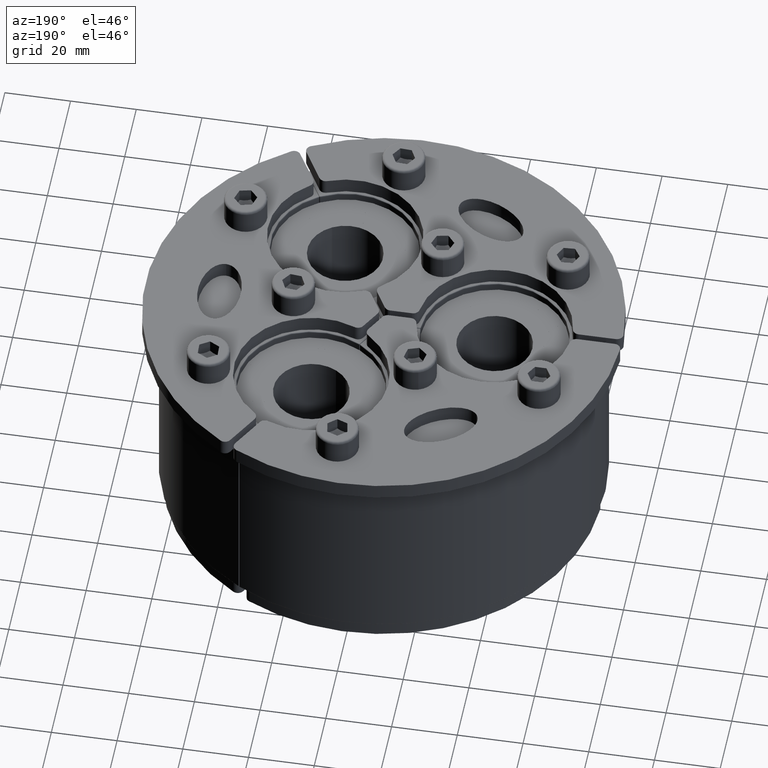
[diagram: clean part render]
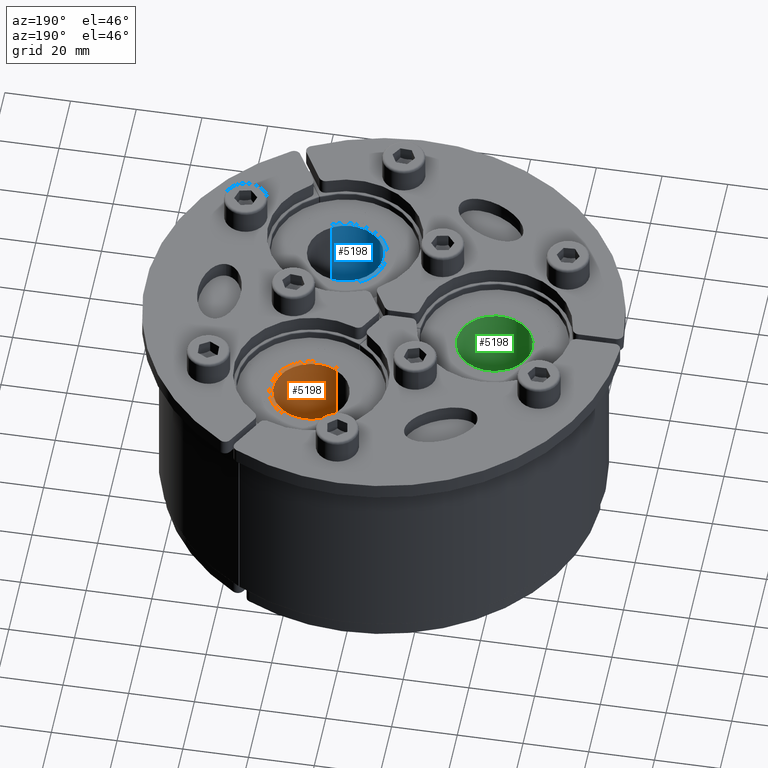
[diagram: same view with three faces highlighted in distinct colors, each labeled with its STEP entity id]
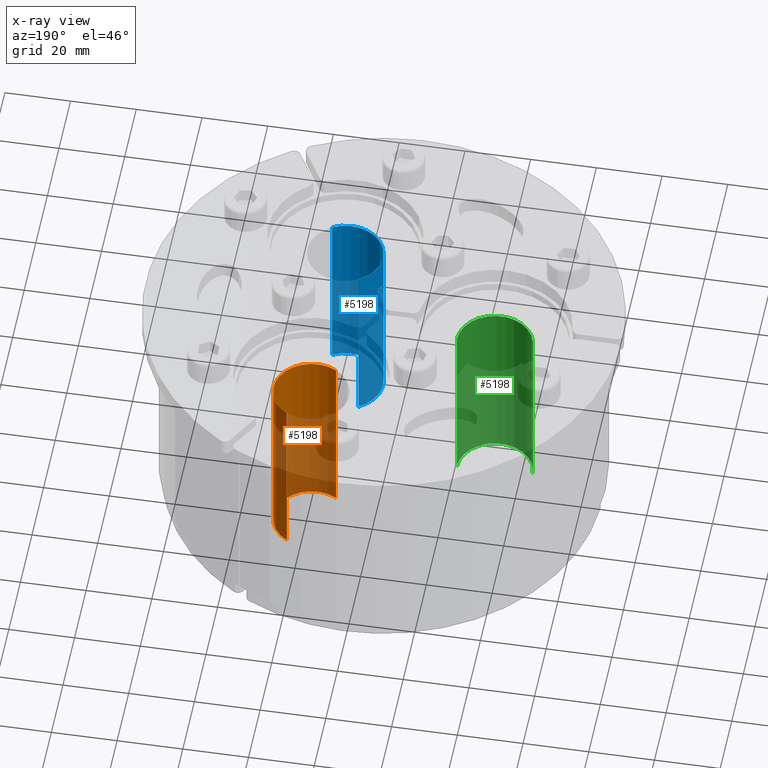
[diagram: x-ray of the same camera — body ghosted, the three highlighted faces saturated]
A machine part, auxiliary view with three faces highlighted in distinct colors.
The next image is the same camera in x-ray (body ghosted, the three faces saturated) — at least one of them is partly hidden behind the body in this view.
Their STEP definitions:

[orange] entity #5198 — the highlighted cylindrical surface (partial cylindrical patch) has radius 11.5 mm, axis along (0, 0, 1).
#5133=CARTESIAN_POINT('',(11.499999999999996,0.0,0.0));
#5134=VERTEX_POINT('',#5133);
#5149=CARTESIAN_POINT('',(11.499999999999995,0.0,55.0));
#5150=VERTEX_POINT('',#5149);
#5157=CARTESIAN_POINT('',(11.499999999999996,0.0,0.0));
#5158=DIRECTION('',(0.0,0.0,1.0));
#5159=VECTOR('',#5158,55.0);
#5160=LINE('',#5157,#5159);
#5161=EDGE_CURVE('',#5134,#5150,#5160,.T.);
#5166=CARTESIAN_POINT('',(0.0,0.0,0.0));
#5167=DIRECTION('',(0.0,0.0,1.0));
#5168=DIRECTION('',(1.0,0.0,0.0));
#5169=AXIS2_PLACEMENT_3D('',#5166,#5167,#5168);
#5170=CYLINDRICAL_SURFACE('',#5169,11.499999999999996);
#5171=CARTESIAN_POINT('',(-11.499999999999996,0.0,0.0));
#5172=VERTEX_POINT('',#5171);
#5173=CARTESIAN_POINT('',(0.0,0.0,0.0));
#5174=DIRECTION('',(0.0,0.0,1.0));
#5175=DIRECTION('',(1.0,0.0,0.0));
#5176=AXIS2_PLACEMENT_3D('',#5173,#5174,#5175);
#5177=CIRCLE('',#5176,11.499999999999996);
#5178=EDGE_CURVE('',#5134,#5172,#5177,.T.);
#5179=ORIENTED_EDGE('',*,*,#5178,.F.);
#5180=ORIENTED_EDGE('',*,*,#5161,.T.);
#5181=CARTESIAN_POINT('',(-11.499999999999996,0.0,55.0));
#5182=VERTEX_POINT('',#5181);
#5183=CARTESIAN_POINT('',(0.0,0.0,55.0));
#5184=DIRECTION('',(0.0,0.0,-1.0));
#5185=DIRECTION('',(1.0,0.0,0.0));
#5186=AXIS2_PLACEMENT_3D('',#5183,#5184,#5185);
#5187=CIRCLE('',#5186,11.499999999999996);
#5188=EDGE_CURVE('',#5182,#5150,#5187,.T.);
#5189=ORIENTED_EDGE('',*,*,#5188,.F.);
#5190=CARTESIAN_POINT('',(-11.499999999999996,0.0,0.0));
#5191=DIRECTION('',(0.0,0.0,1.0));
#5192=VECTOR('',#5191,55.0);
#5193=LINE('',#5190,#5192);
#5194=EDGE_CURVE('',#5172,#5182,#5193,.T.);
#5195=ORIENTED_EDGE('',*,*,#5194,.F.);
#5196=EDGE_LOOP('',(#5179,#5180,#5189,#5195));
#5197=FACE_OUTER_BOUND('',#5196,.T.);
#5198=ADVANCED_FACE('',(#5197),#5170,.F.);

[blue] entity #5198 — the highlighted cylindrical surface (partial cylindrical patch) has radius 11.5 mm, axis along (0, -0, 1).
#5133=CARTESIAN_POINT('',(11.499999999999996,0.0,0.0));
#5134=VERTEX_POINT('',#5133);
#5149=CARTESIAN_POINT('',(11.499999999999995,0.0,55.0));
#5150=VERTEX_POINT('',#5149);
#5157=CARTESIAN_POINT('',(11.499999999999996,0.0,0.0));
#5158=DIRECTION('',(0.0,0.0,1.0));
#5159=VECTOR('',#5158,55.0);
#5160=LINE('',#5157,#5159);
#5161=EDGE_CURVE('',#5134,#5150,#5160,.T.);
#5166=CARTESIAN_POINT('',(0.0,0.0,0.0));
#5167=DIRECTION('',(0.0,0.0,1.0));
#5168=DIRECTION('',(1.0,0.0,0.0));
#5169=AXIS2_PLACEMENT_3D('',#5166,#5167,#5168);
#5170=CYLINDRICAL_SURFACE('',#5169,11.499999999999996);
#5171=CARTESIAN_POINT('',(-11.499999999999996,0.0,0.0));
#5172=VERTEX_POINT('',#5171);
#5173=CARTESIAN_POINT('',(0.0,0.0,0.0));
#5174=DIRECTION('',(0.0,0.0,1.0));
#5175=DIRECTION('',(1.0,0.0,0.0));
#5176=AXIS2_PLACEMENT_3D('',#5173,#5174,#5175);
#5177=CIRCLE('',#5176,11.499999999999996);
#5178=EDGE_CURVE('',#5134,#5172,#5177,.T.);
#5179=ORIENTED_EDGE('',*,*,#5178,.F.);
#5180=ORIENTED_EDGE('',*,*,#5161,.T.);
#5181=CARTESIAN_POINT('',(-11.499999999999996,0.0,55.0));
#5182=VERTEX_POINT('',#5181);
#5183=CARTESIAN_POINT('',(0.0,0.0,55.0));
#5184=DIRECTION('',(0.0,0.0,-1.0));
#5185=DIRECTION('',(1.0,0.0,0.0));
#5186=AXIS2_PLACEMENT_3D('',#5183,#5184,#5185);
#5187=CIRCLE('',#5186,11.499999999999996);
#5188=EDGE_CURVE('',#5182,#5150,#5187,.T.);
#5189=ORIENTED_EDGE('',*,*,#5188,.F.);
#5190=CARTESIAN_POINT('',(-11.499999999999996,0.0,0.0));
#5191=DIRECTION('',(0.0,0.0,1.0));
#5192=VECTOR('',#5191,55.0);
#5193=LINE('',#5190,#5192);
#5194=EDGE_CURVE('',#5172,#5182,#5193,.T.);
#5195=ORIENTED_EDGE('',*,*,#5194,.F.);
#5196=EDGE_LOOP('',(#5179,#5180,#5189,#5195));
#5197=FACE_OUTER_BOUND('',#5196,.T.);
#5198=ADVANCED_FACE('',(#5197),#5170,.F.);

[green] entity #5198 — the highlighted cylindrical surface (partial cylindrical patch) has radius 11.5 mm, axis along (-0, 0, -1).
#5133=CARTESIAN_POINT('',(11.499999999999996,0.0,0.0));
#5134=VERTEX_POINT('',#5133);
#5149=CARTESIAN_POINT('',(11.499999999999995,0.0,55.0));
#5150=VERTEX_POINT('',#5149);
#5157=CARTESIAN_POINT('',(11.499999999999996,0.0,0.0));
#5158=DIRECTION('',(0.0,0.0,1.0));
#5159=VECTOR('',#5158,55.0);
#5160=LINE('',#5157,#5159);
#5161=EDGE_CURVE('',#5134,#5150,#5160,.T.);
#5166=CARTESIAN_POINT('',(0.0,0.0,0.0));
#5167=DIRECTION('',(0.0,0.0,1.0));
#5168=DIRECTION('',(1.0,0.0,0.0));
#5169=AXIS2_PLACEMENT_3D('',#5166,#5167,#5168);
#5170=CYLINDRICAL_SURFACE('',#5169,11.499999999999996);
#5171=CARTESIAN_POINT('',(-11.499999999999996,0.0,0.0));
#5172=VERTEX_POINT('',#5171);
#5173=CARTESIAN_POINT('',(0.0,0.0,0.0));
#5174=DIRECTION('',(0.0,0.0,1.0));
#5175=DIRECTION('',(1.0,0.0,0.0));
#5176=AXIS2_PLACEMENT_3D('',#5173,#5174,#5175);
#5177=CIRCLE('',#5176,11.499999999999996);
#5178=EDGE_CURVE('',#5134,#5172,#5177,.T.);
#5179=ORIENTED_EDGE('',*,*,#5178,.F.);
#5180=ORIENTED_EDGE('',*,*,#5161,.T.);
#5181=CARTESIAN_POINT('',(-11.499999999999996,0.0,55.0));
#5182=VERTEX_POINT('',#5181);
#5183=CARTESIAN_POINT('',(0.0,0.0,55.0));
#5184=DIRECTION('',(0.0,0.0,-1.0));
#5185=DIRECTION('',(1.0,0.0,0.0));
#5186=AXIS2_PLACEMENT_3D('',#5183,#5184,#5185);
#5187=CIRCLE('',#5186,11.499999999999996);
#5188=EDGE_CURVE('',#5182,#5150,#5187,.T.);
#5189=ORIENTED_EDGE('',*,*,#5188,.F.);
#5190=CARTESIAN_POINT('',(-11.499999999999996,0.0,0.0));
#5191=DIRECTION('',(0.0,0.0,1.0));
#5192=VECTOR('',#5191,55.0);
#5193=LINE('',#5190,#5192);
#5194=EDGE_CURVE('',#5172,#5182,#5193,.T.);
#5195=ORIENTED_EDGE('',*,*,#5194,.F.);
#5196=EDGE_LOOP('',(#5179,#5180,#5189,#5195));
#5197=FACE_OUTER_BOUND('',#5196,.T.);
#5198=ADVANCED_FACE('',(#5197),#5170,.F.);